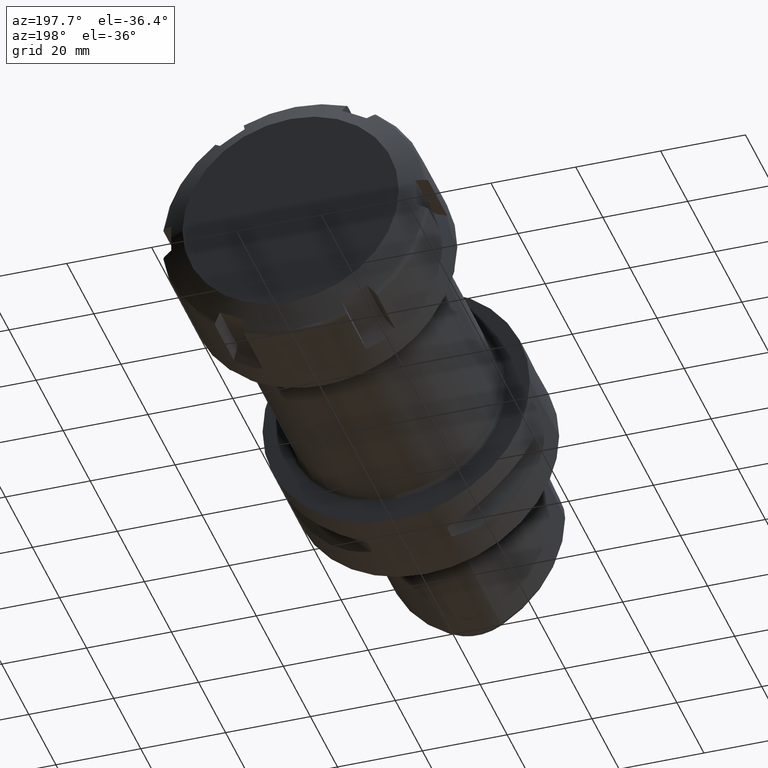
[diagram: clean part render]
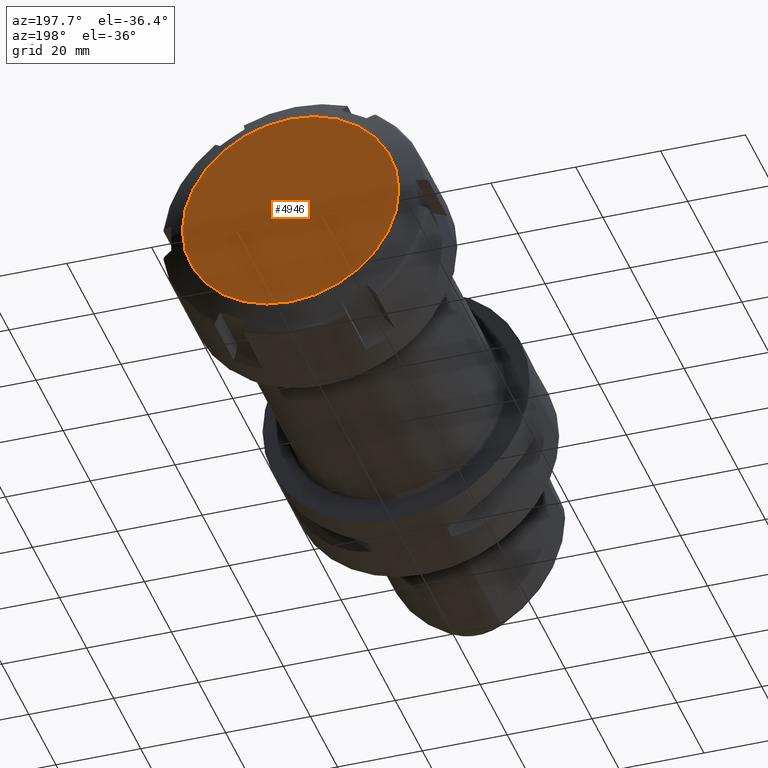
[diagram: same view with one face highlighted and labeled with its STEP entity id]
A machine part, auxiliary view. The second image highlights one B-rep face of the part: STEP entity #4946.
In plain terms, the highlighted planar face has unit normal (0, 1, 0).
Its self-contained STEP definition (entity closure, byte-faithful):
#4180=CARTESIAN_POINT('',(2.55E1,0.E0,0.E0));
#4181=DIRECTION('',(-1.E0,0.E0,0.E0));
#4182=DIRECTION('',(0.E0,1.E0,0.E0));
#4183=AXIS2_PLACEMENT_3D('',#4180,#4181,#4182);
#4540=CARTESIAN_POINT('',(2.55E1,0.E0,0.E0));
#4541=DIRECTION('',(1.E0,0.E0,0.E0));
#4542=DIRECTION('',(0.E0,1.E0,0.E0));
#4543=AXIS2_PLACEMENT_3D('',#4540,#4541,#4542);
#4823=CARTESIAN_POINT('',(2.55E1,2.55E1,0.E0));
#4824=CARTESIAN_POINT('',(2.55E1,-2.55E1,0.E0));
#4825=VERTEX_POINT('',#4823);
#4826=VERTEX_POINT('',#4824);
#4935=CARTESIAN_POINT('',(2.55E1,0.E0,0.E0));
#4936=DIRECTION('',(1.E0,0.E0,0.E0));
#4937=DIRECTION('',(0.E0,-1.E0,0.E0));
#4938=AXIS2_PLACEMENT_3D('',#4935,#4936,#4937);
#4939=PLANE('',#4938);
#4941=ORIENTED_EDGE('',*,*,#4940,.T.);
#4943=ORIENTED_EDGE('',*,*,#4942,.F.);
#4944=EDGE_LOOP('',(#4941,#4943));
#4945=FACE_OUTER_BOUND('',#4944,.F.);
#4946=ADVANCED_FACE('',(#4945),#4939,.T.);
#4184=CIRCLE('',#4183,2.55E1);
#4544=CIRCLE('',#4543,2.55E1);
#4940=EDGE_CURVE('',#4825,#4826,#4184,.T.);
#4942=EDGE_CURVE('',#4825,#4826,#4544,.T.);